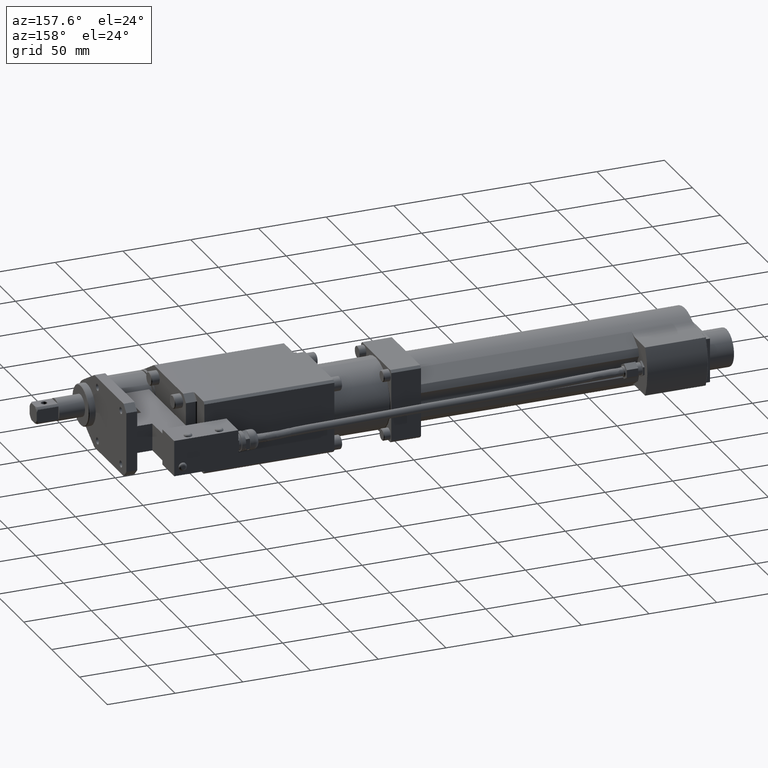
[diagram: clean part render]
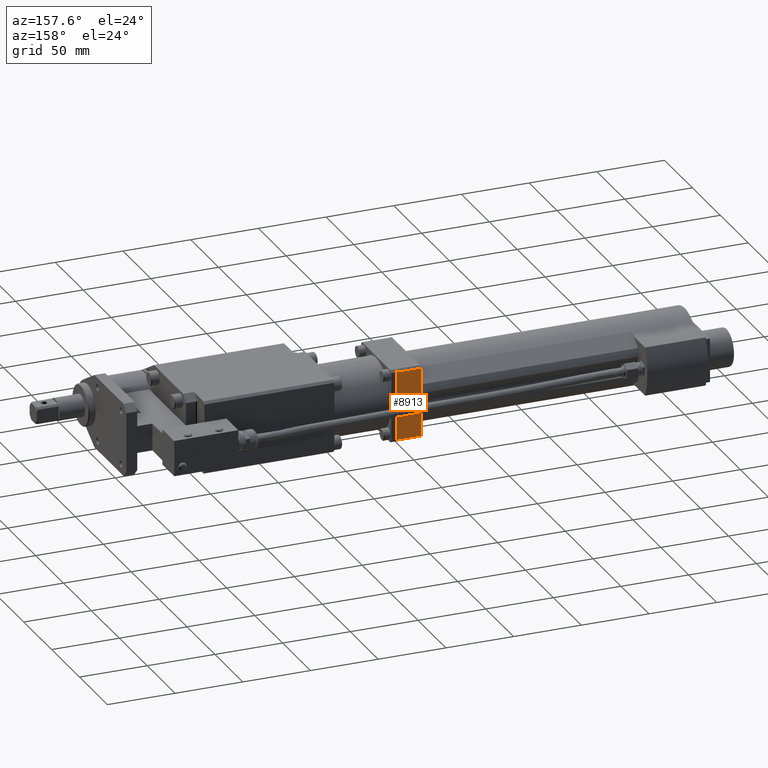
[diagram: same view with one face highlighted and labeled with its STEP entity id]
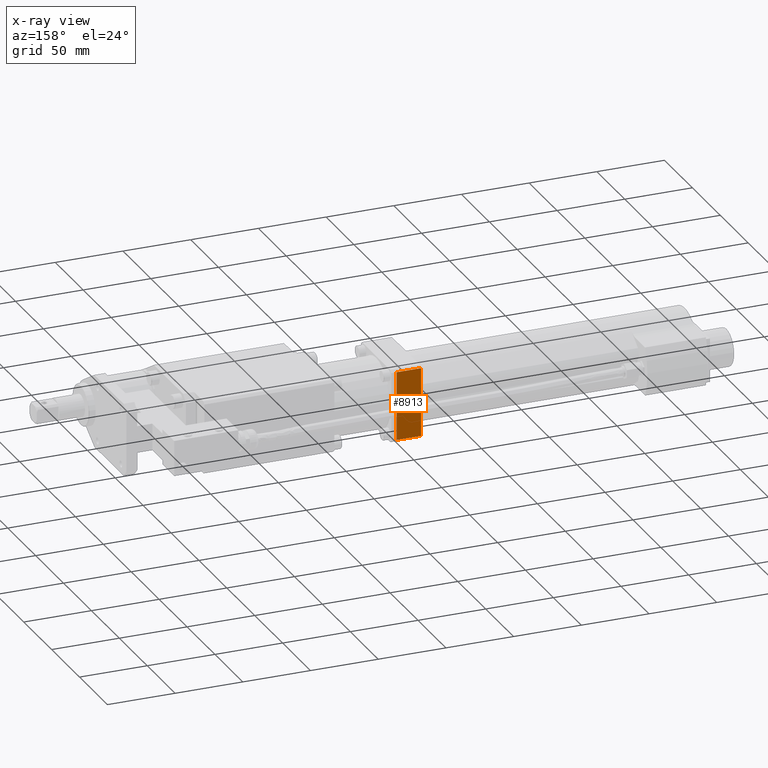
[diagram: x-ray of the same camera — body ghosted, the highlighted face saturated]
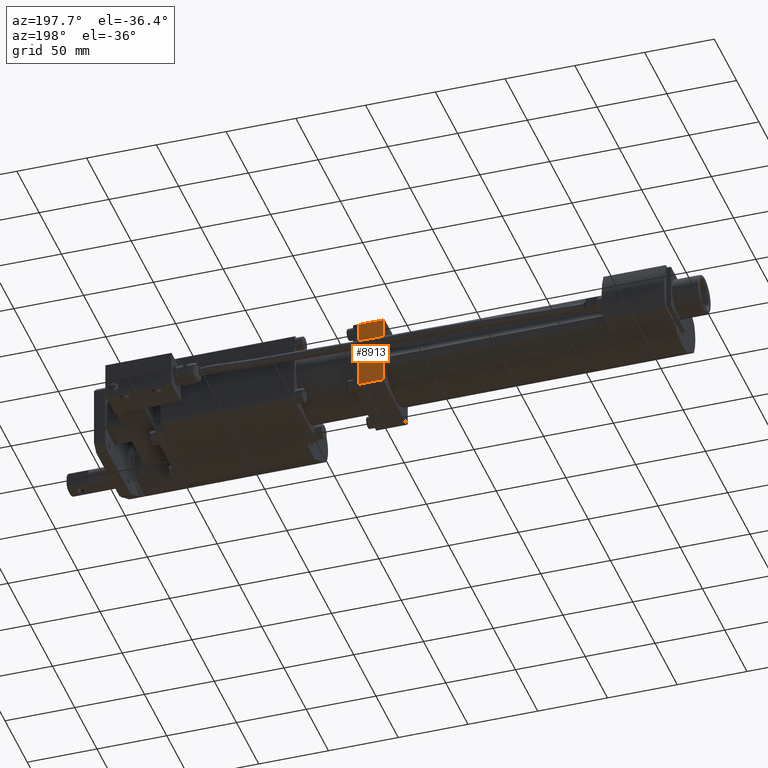
[diagram: same view with one face highlighted and labeled with its STEP entity id]
A machine part, auxiliary view. The second image highlights one B-rep face of the part: STEP entity #8913.
The next image is the same camera in x-ray: the body ghosted, the highlighted face saturated — about 0% of this face is hidden behind the body in this view.
A second angle (auxiliary view) of the same face is appended — the face is thin or edge-on in the first view.
In plain terms, the highlighted planar face has unit normal (0, -1, -0).
Its self-contained STEP definition (entity closure, byte-faithful):
#173 = CARTESIAN_POINT ( 'NONE',  ( -212.0000000000000300, 83.70000000000000300, 27.00000000000000400 ) ) ;
#330 = ORIENTED_EDGE ( 'NONE', *, *, #8811, .F. ) ;
#829 = CARTESIAN_POINT ( 'NONE',  ( -194.0000000000000300, 83.70000000000000300, 27.00000000000000400 ) ) ;
#875 = CARTESIAN_POINT ( 'NONE',  ( -212.0000000000000300, 83.70000000000000300, 27.00000000000000400 ) ) ;
#1024 = DIRECTION ( 'NONE',  ( 0.0000000000000000000, 0.0000000000000000000, -1.000000000000000000 ) ) ;
#1344 = EDGE_CURVE ( 'NONE', #9376, #3027, #8539, .T. ) ;
#1551 = AXIS2_PLACEMENT_3D ( 'NONE', #173, #6104, #1024 ) ;
#1574 = DIRECTION ( 'NONE',  ( 1.000000000000000000, 0.0000000000000000000, 0.0000000000000000000 ) ) ;
#1615 = CARTESIAN_POINT ( 'NONE',  ( -212.0000000000000300, 83.70000000000000300, -25.29999999999997600 ) ) ;
#1696 = DIRECTION ( 'NONE',  ( 0.0000000000000000000, 0.0000000000000000000, -1.000000000000000000 ) ) ;
#1811 = ORIENTED_EDGE ( 'NONE', *, *, #4121, .T. ) ;
#1901 = VERTEX_POINT ( 'NONE', #9907 ) ;
#2457 = DIRECTION ( 'NONE',  ( -1.000000000000000000, 0.0000000000000000000, 0.0000000000000000000 ) ) ;
#2814 = ORIENTED_EDGE ( 'NONE', *, *, #9451, .T. ) ;
#2860 = VERTEX_POINT ( 'NONE', #5834 ) ;
#3027 = VERTEX_POINT ( 'NONE', #10338 ) ;
#3777 = LINE ( 'NONE', #829, #10309 ) ;
#4121 = EDGE_CURVE ( 'NONE', #1901, #2860, #5013, .T. ) ;
#5013 = LINE ( 'NONE', #1615, #7276 ) ;
#5145 = ORIENTED_EDGE ( 'NONE', *, *, #1344, .T. ) ;
#5721 = LINE ( 'NONE', #875, #7973 ) ;
#5834 = CARTESIAN_POINT ( 'NONE',  ( -212.0000000000000300, 83.70000000000000300, -25.29999999999996200 ) ) ;
#5955 = DIRECTION ( 'NONE',  ( 0.0000000000000000000, 0.0000000000000000000, -1.000000000000000000 ) ) ;
#6104 = DIRECTION ( 'NONE',  ( 0.0000000000000000000, -1.000000000000000000, -0.0000000000000000000 ) ) ;
#6658 = CARTESIAN_POINT ( 'NONE',  ( -212.0000000000000300, 83.70000000000000300, 25.30000000000001100 ) ) ;
#7276 = VECTOR ( 'NONE', #2457, 1000.000000000000000 ) ;
#7973 = VECTOR ( 'NONE', #5955, 1000.000000000000000 ) ;
#8258 = VECTOR ( 'NONE', #1574, 1000.000000000000000 ) ;
#8539 = LINE ( 'NONE', #6658, #8258 ) ;
#8811 = EDGE_CURVE ( 'NONE', #9376, #2860, #5721, .T. ) ;
#8913 = ADVANCED_FACE ( 'NONE', ( #9452 ), #9465, .F. ) ;
#9115 = CARTESIAN_POINT ( 'NONE',  ( -212.0000000000000300, 83.70000000000000300, 25.30000000000001500 ) ) ;
#9376 = VERTEX_POINT ( 'NONE', #9115 ) ;
#9451 = EDGE_CURVE ( 'NONE', #3027, #1901, #3777, .T. ) ;
#9452 = FACE_OUTER_BOUND ( 'NONE', #9765, .T. ) ;
#9465 = PLANE ( 'NONE',  #1551 ) ;
#9765 = EDGE_LOOP ( 'NONE', ( #2814, #1811, #330, #5145 ) ) ;
#9907 = CARTESIAN_POINT ( 'NONE',  ( -194.0000000000000300, 83.70000000000000300, -25.29999999999997600 ) ) ;
#10309 = VECTOR ( 'NONE', #1696, 1000.000000000000000 ) ;
#10338 = CARTESIAN_POINT ( 'NONE',  ( -194.0000000000000300, 83.70000000000000300, 25.30000000000001100 ) ) ;